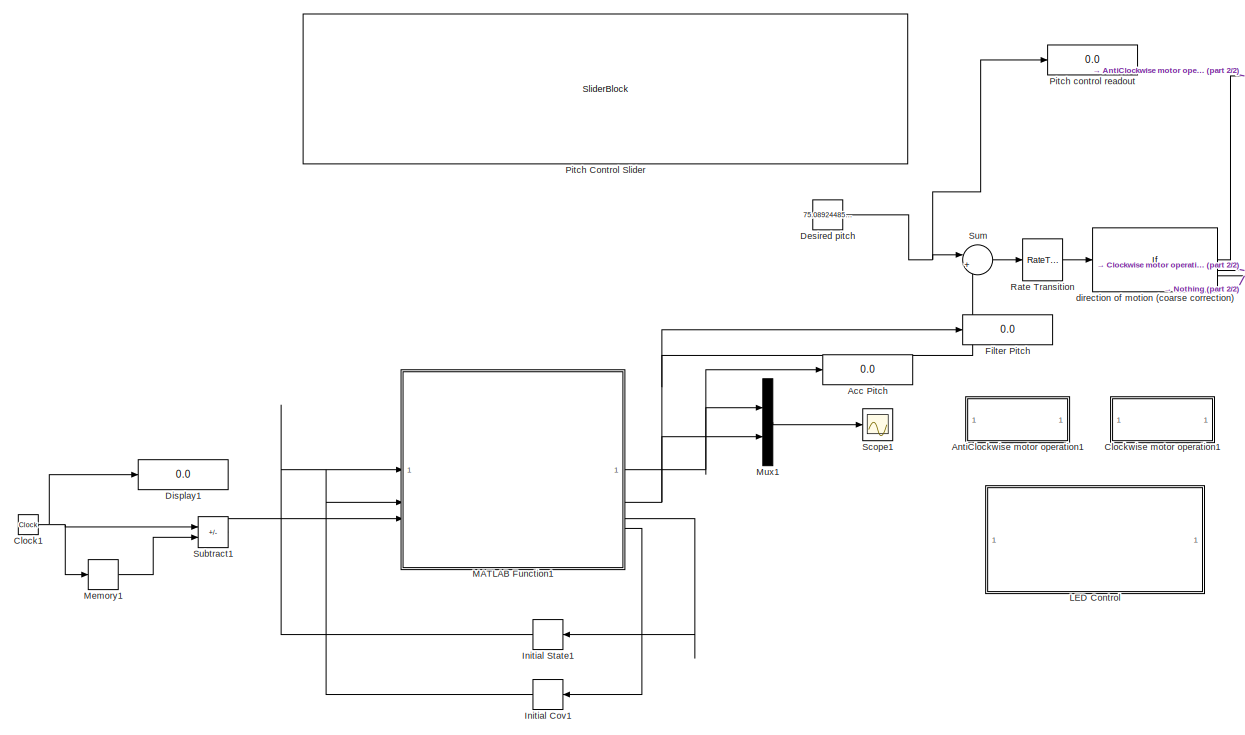
[diagram: root canvas - part 1/2, left side, full height]
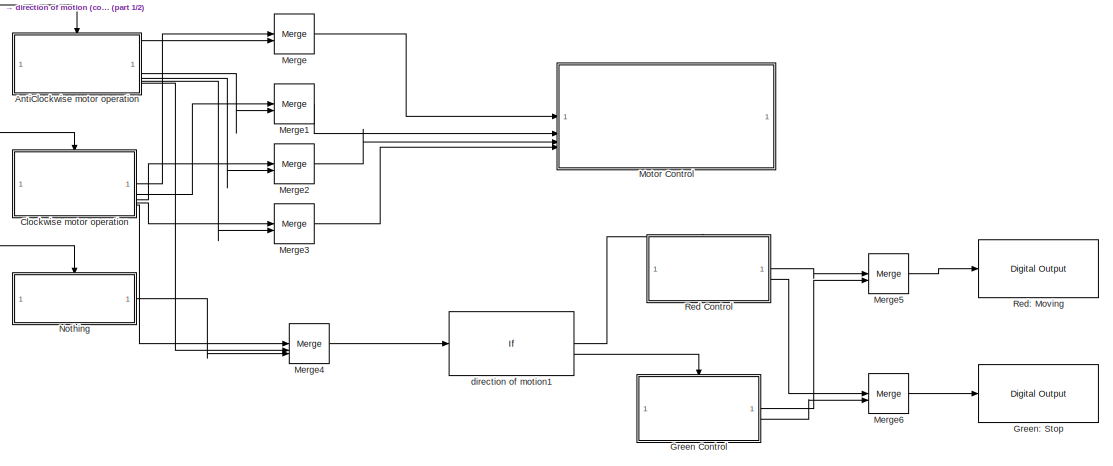
[diagram: root canvas - part 2/2, middle right region]
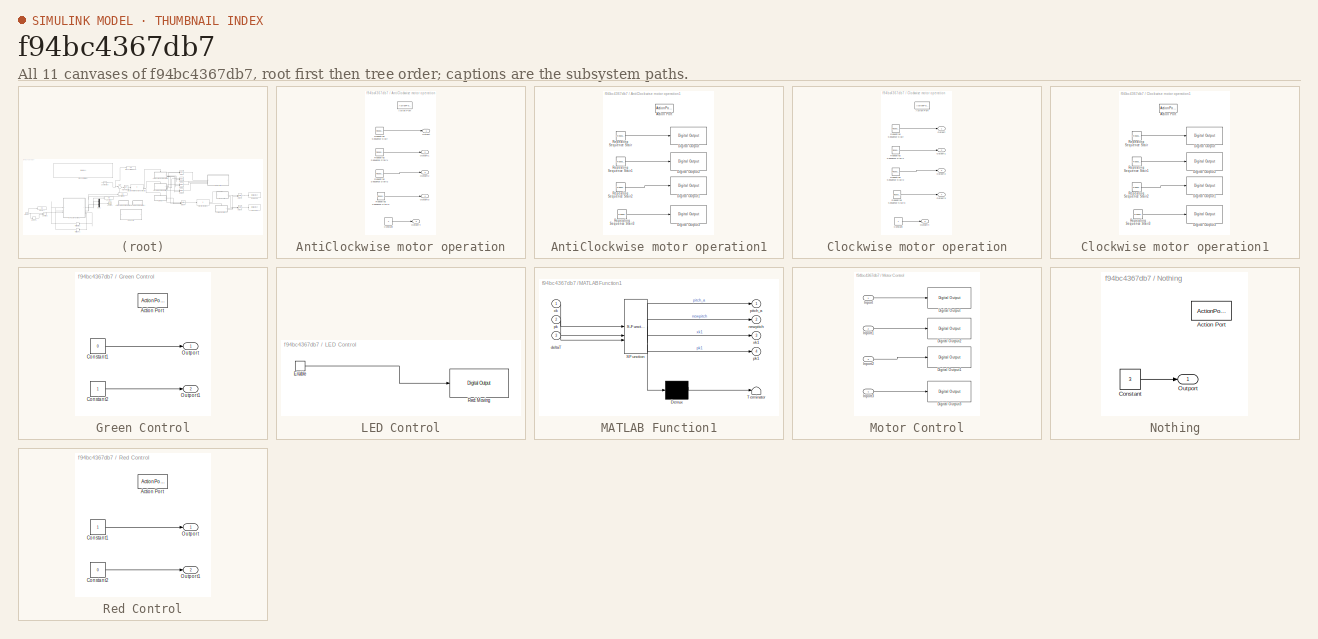
[diagram: thumbnail index - all 11 canvases of the model, root first then tree order]
MODEL slx_f94bc4367db7
KIND model
CONFIG AbsTol = auto
CONFIG EnableMultiTasking = on
CONFIG FixedStep = auto
CONFIG MaxStep = auto
CONFIG MinStep = auto
CONFIG RelTol = 1e-3
CONFIG SampleTimeConstraint = Unconstrained
CONFIG SolverName = FixedStepAuto
CONFIG StartTime = 0.0
CONFIG StopTime = inf
BLOCK [Display] Acc Pitch
  Decimation = 1
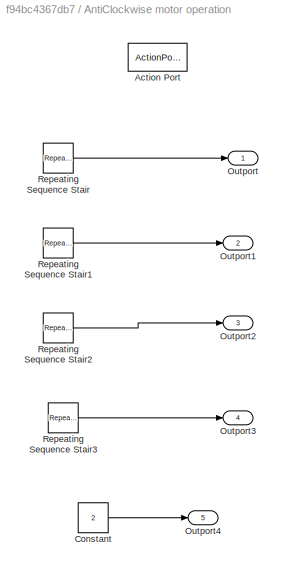
BLOCK [SubSystem] AntiClockwise motor operation
BLOCK [ActionPort] AntiClockwise motor operation/Action Port
  ActionPortLabel = if(u1 > 1)
BLOCK [Constant] AntiClockwise motor operation/Constant
  Value = 2
BLOCK [Outport] AntiClockwise motor operation/Outport
BLOCK [Outport] AntiClockwise motor operation/Outport1
  Port = 2
BLOCK [Outport] AntiClockwise motor operation/Outport2
  Port = 3
BLOCK [Outport] AntiClockwise motor operation/Outport3
  Port = 4
BLOCK [Outport] AntiClockwise motor operation/Outport4
  Port = 5
BLOCK [Reference] AntiClockwise motor operation/Repeating Sequence Stair  REF=simulink/Sources/Repeating
Sequence
Stair
  SourceBlock = simulink/Sources/Repeating\nSequence\nStair
  SourceType = Repeating Sequence Stair
BLOCK [Reference] AntiClockwise motor operation/Repeating Sequence Stair1  REF=simulink/Sources/Repeating
Sequence
Stair
  SourceBlock = simulink/Sources/Repeating\nSequence\nStair
  SourceType = Repeating Sequence Stair
BLOCK [Reference] AntiClockwise motor operation/Repeating Sequence Stair2  REF=simulink/Sources/Repeating
Sequence
Stair
  SourceBlock = simulink/Sources/Repeating\nSequence\nStair
  SourceType = Repeating Sequence Stair
BLOCK [Reference] AntiClockwise motor operation/Repeating Sequence Stair3  REF=simulink/Sources/Repeating
Sequence
Stair
  SourceBlock = simulink/Sources/Repeating\nSequence\nStair
  SourceType = Repeating Sequence Stair
BLOCK [SubSystem] AntiClockwise motor operation1
  Commented = on
BLOCK [ActionPort] AntiClockwise motor operation1/Action Port
BLOCK [Reference] AntiClockwise motor operation1/Digital Output  REF=arduinolib/Digital Output
  SourceBlock = arduinolib/Digital Output
  SourceType = Arduino Digital Output
BLOCK [Reference] AntiClockwise motor operation1/Digital Output1  REF=arduinolib/Digital Output
  SourceBlock = arduinolib/Digital Output
  SourceType = Arduino Digital Output
BLOCK [Reference] AntiClockwise motor operation1/Digital Output2  REF=arduinolib/Digital Output
  SourceBlock = arduinolib/Digital Output
  SourceType = Arduino Digital Output
BLOCK [Reference] AntiClockwise motor operation1/Digital Output3  REF=arduinolib/Digital Output
  SourceBlock = arduinolib/Digital Output
  SourceType = Arduino Digital Output
BLOCK [Reference] AntiClockwise motor operation1/Repeating Sequence Stair  REF=simulink/Sources/Repeating
Sequence
Stair
  SourceBlock = simulink/Sources/Repeating\nSequence\nStair
  SourceType = Repeating Sequence Stair
BLOCK [Reference] AntiClockwise motor operation1/Repeating Sequence Stair1  REF=simulink/Sources/Repeating
Sequence
Stair
  SourceBlock = simulink/Sources/Repeating\nSequence\nStair
  SourceType = Repeating Sequence Stair
BLOCK [Reference] AntiClockwise motor operation1/Repeating Sequence Stair2  REF=simulink/Sources/Repeating
Sequence
Stair
  SourceBlock = simulink/Sources/Repeating\nSequence\nStair
  SourceType = Repeating Sequence Stair
BLOCK [Reference] AntiClockwise motor operation1/Repeating Sequence Stair3  REF=simulink/Sources/Repeating
Sequence
Stair
  SourceBlock = simulink/Sources/Repeating\nSequence\nStair
  SourceType = Repeating Sequence Stair
BLOCK [Clock] Clock1
BLOCK [SubSystem] Clockwise motor operation
BLOCK [ActionPort] Clockwise motor operation/Action Port
  ActionPortLabel = elseif(u1 < -1)
BLOCK [Constant] Clockwise motor operation/Constant
BLOCK [Outport] Clockwise motor operation/Outport
BLOCK [Outport] Clockwise motor operation/Outport1
  Port = 2
BLOCK [Outport] Clockwise motor operation/Outport2
  Port = 3
BLOCK [Outport] Clockwise motor operation/Outport3
  Port = 4
BLOCK [Outport] Clockwise motor operation/Outport4
  Port = 5
BLOCK [Reference] Clockwise motor operation/Repeating Sequence Stair  REF=simulink/Sources/Repeating
Sequence
Stair
  SourceBlock = simulink/Sources/Repeating\nSequence\nStair
  SourceType = Repeating Sequence Stair
BLOCK [Reference] Clockwise motor operation/Repeating Sequence Stair1  REF=simulink/Sources/Repeating
Sequence
Stair
  SourceBlock = simulink/Sources/Repeating\nSequence\nStair
  SourceType = Repeating Sequence Stair
BLOCK [Reference] Clockwise motor operation/Repeating Sequence Stair2  REF=simulink/Sources/Repeating
Sequence
Stair
  SourceBlock = simulink/Sources/Repeating\nSequence\nStair
  SourceType = Repeating Sequence Stair
BLOCK [Reference] Clockwise motor operation/Repeating Sequence Stair3  REF=simulink/Sources/Repeating
Sequence
Stair
  SourceBlock = simulink/Sources/Repeating\nSequence\nStair
  SourceType = Repeating Sequence Stair
BLOCK [SubSystem] Clockwise motor operation1
  Commented = on
BLOCK [ActionPort] Clockwise motor operation1/Action Port
BLOCK [Reference] Clockwise motor operation1/Digital Output  REF=arduinolib/Digital Output
  SourceBlock = arduinolib/Digital Output
  SourceType = Arduino Digital Output
BLOCK [Reference] Clockwise motor operation1/Digital Output1  REF=arduinolib/Digital Output
  SourceBlock = arduinolib/Digital Output
  SourceType = Arduino Digital Output
BLOCK [Reference] Clockwise motor operation1/Digital Output2  REF=arduinolib/Digital Output
  SourceBlock = arduinolib/Digital Output
  SourceType = Arduino Digital Output
BLOCK [Reference] Clockwise motor operation1/Digital Output3  REF=arduinolib/Digital Output
  SourceBlock = arduinolib/Digital Output
  SourceType = Arduino Digital Output
BLOCK [Reference] Clockwise motor operation1/Repeating Sequence Stair  REF=simulink/Sources/Repeating
Sequence
Stair
  SourceBlock = simulink/Sources/Repeating\nSequence\nStair
  SourceType = Repeating Sequence Stair
BLOCK [Reference] Clockwise motor operation1/Repeating Sequence Stair1  REF=simulink/Sources/Repeating
Sequence
Stair
  SourceBlock = simulink/Sources/Repeating\nSequence\nStair
  SourceType = Repeating Sequence Stair
BLOCK [Reference] Clockwise motor operation1/Repeating Sequence Stair2  REF=simulink/Sources/Repeating
Sequence
Stair
  SourceBlock = simulink/Sources/Repeating\nSequence\nStair
  SourceType = Repeating Sequence Stair
BLOCK [Reference] Clockwise motor operation1/Repeating Sequence Stair3  REF=simulink/Sources/Repeating
Sequence
Stair
  SourceBlock = simulink/Sources/Repeating\nSequence\nStair
  SourceType = Repeating Sequence Stair
BLOCK [Constant] Desired pitch
  Value = 75.0892448512586
BLOCK [Display] Display1
  Decimation = 1
BLOCK [Display] Filter Pitch
  Decimation = 1
BLOCK [SubSystem] Green Control
BLOCK [ActionPort] Green Control/Action Port
  ActionPortLabel = elseif(u1 > 2)
BLOCK [Constant] Green Control/Constant1
  Value = 0
BLOCK [Constant] Green Control/Constant2
BLOCK [Outport] Green Control/Outport
BLOCK [Outport] Green Control/Outport1
  Port = 2
BLOCK [Reference] Green: Stop  REF=arduinolib/Digital Output
  SourceBlock = arduinolib/Digital Output
  SourceType = Arduino Digital Output
BLOCK [Memory] Initial Cov1
  InitialCondition = [0.5 0; 0 0.01]
  NameLocation = top
BLOCK [Memory] Initial State1
  InitialCondition = [0;0]
  NameLocation = top
BLOCK [SubSystem] LED Control
  Commented = on
BLOCK [EnablePort] LED Control/Enable
  ShowOutputPort = on
  StatesWhenEnabling = reset
BLOCK [Reference] LED Control/Red: Moving  REF=arduinolib/Digital Output
  SourceBlock = arduinolib/Digital Output
  SourceType = Arduino Digital Output
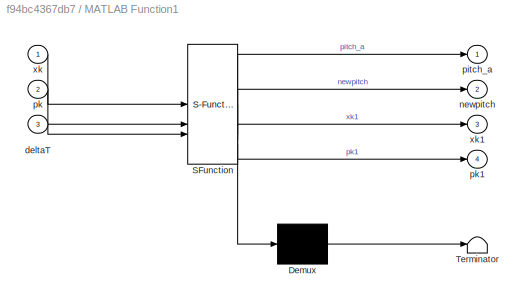
BLOCK [SubSystem] MATLAB Function1
  ErrorFcn = Stateflow.Translate.translate
  LibrarySourceBlock = simulink/User-Defined\nFunctions/MATLAB Function
  PermitHierarchicalResolution = ExplicitOnly
  SFBlockType = MATLAB Function
  TreatAsAtomicUnit = on
BLOCK [Demux] MATLAB Function1/ Demux 
  Outputs = 1
BLOCK [S-Function] MATLAB Function1/ SFunction 
  EnableBusSupport = on
  FunctionName = sf_sfun
  PortCounts = [3 5]
  SFcnIsStateOwnerBlock = off
  SFunctionDeploymentMode = off
  Tag = Stateflow S-Function 2
BLOCK [Terminator] MATLAB Function1/ Terminator 
BLOCK [Inport] MATLAB Function1/deltaT
  Port = 3
BLOCK [Outport] MATLAB Function1/newpitch
  Port = 2
BLOCK [Outport] MATLAB Function1/pitch_a
BLOCK [Inport] MATLAB Function1/pk
  Port = 2
BLOCK [Outport] MATLAB Function1/pk1
  Port = 4
BLOCK [Inport] MATLAB Function1/xk
BLOCK [Outport] MATLAB Function1/xk1
  Port = 3
BLOCK [Memory] Memory1
BLOCK [Merge] Merge
BLOCK [Merge] Merge1
BLOCK [Merge] Merge2
BLOCK [Merge] Merge3
BLOCK [Merge] Merge4
  Inputs = 3
BLOCK [Merge] Merge5
BLOCK [Merge] Merge6
BLOCK [SubSystem] Motor Control
BLOCK [Reference] Motor Control/Digital Output  REF=arduinolib/Digital Output
  SourceBlock = arduinolib/Digital Output
  SourceType = Arduino Digital Output
BLOCK [Reference] Motor Control/Digital Output1  REF=arduinolib/Digital Output
  SourceBlock = arduinolib/Digital Output
  SourceType = Arduino Digital Output
BLOCK [Reference] Motor Control/Digital Output2  REF=arduinolib/Digital Output
  SourceBlock = arduinolib/Digital Output
  SourceType = Arduino Digital Output
BLOCK [Reference] Motor Control/Digital Output3  REF=arduinolib/Digital Output
  SourceBlock = arduinolib/Digital Output
  SourceType = Arduino Digital Output
BLOCK [Inport] Motor Control/Inport
BLOCK [Inport] Motor Control/Inport1
  Port = 2
BLOCK [Inport] Motor Control/Inport2
  Port = 3
BLOCK [Inport] Motor Control/Inport3
  Port = 4
BLOCK [Mux] Mux1
  DisplayOption = bar
  Inputs = 2
BLOCK [SubSystem] Nothing
BLOCK [ActionPort] Nothing/Action Port
  ActionPortLabel = else
BLOCK [Constant] Nothing/Constant
  Value = 3
BLOCK [Outport] Nothing/Outport
BLOCK [SliderBlock] Pitch Control Slider
  ScaleMax = 90
  ScaleMin = -90
  TickInterval = 10
BLOCK [Display] Pitch control readout
  Decimation = 1
BLOCK [RateTransition] Rate Transition
BLOCK [SubSystem] Red Control
BLOCK [ActionPort] Red Control/Action Port
  ActionPortLabel = if(u1 <= 2)
BLOCK [Constant] Red Control/Constant1
BLOCK [Constant] Red Control/Constant2
  Value = 0
BLOCK [Outport] Red Control/Outport
BLOCK [Outport] Red Control/Outport1
  Port = 2
BLOCK [Reference] Red: Moving  REF=arduinolib/Digital Output
  SourceBlock = arduinolib/Digital Output
  SourceType = Arduino Digital Output
BLOCK [Scope] Scope1
  Floating = off
  NumInputPorts = 1
  ScopeSpecificationString = Simulink.scopes.TimeScopeBlockCfg('CurrentConfiguration', extmgr.ConfigurationSet(extmgr.Configuration('Core','General UI',true),extmgr.Configuration('Core','Source UI',true),extmgr.Configuration('Sources','WiredSimulink',true,'DataLoggingVariableName','ScopeData1'),extmgr.Configuration('Visuals','Time Domain',true,'SerializedDisplays',{struct('MinYLimReal','-15.36043','MaxYLimReal','-14.17016','Y...<+1419ch>
BLOCK [Sum] Subtract1
  IconShape = rectangular
  Inputs = +-
BLOCK [Sum] Sum
  Inputs = |+-
BLOCK [If] direction of motion (coarse correction)
  ElseIfExpressions = u1 < -1
  IfExpression = u1 > 1
BLOCK [If] direction of motion1
  ElseIfExpressions = u1 > 2
  IfExpression = u1 <= 2
  ShowElse = off
LINE AntiClockwise motor operation/Constant:1 -> AntiClockwise motor operation/Outport4:1
LINE AntiClockwise motor operation/Repeating Sequence Stair1:1 -> AntiClockwise motor operation/Outport1:1
LINE AntiClockwise motor operation/Repeating Sequence Stair2:1 -> AntiClockwise motor operation/Outport2:1
LINE AntiClockwise motor operation/Repeating Sequence Stair3:1 -> AntiClockwise motor operation/Outport3:1
LINE AntiClockwise motor operation/Repeating Sequence Stair:1 -> AntiClockwise motor operation/Outport:1
LINE AntiClockwise motor operation1/Repeating Sequence Stair1:1 -> AntiClockwise motor operation1/Digital Output2:1
LINE AntiClockwise motor operation1/Repeating Sequence Stair2:1 -> AntiClockwise motor operation1/Digital Output1:1
LINE AntiClockwise motor operation1/Repeating Sequence Stair3:1 -> AntiClockwise motor operation1/Digital Output3:1
LINE AntiClockwise motor operation1/Repeating Sequence Stair:1 -> AntiClockwise motor operation1/Digital Output:1
LINE AntiClockwise motor operation:1 -> Merge:2
LINE AntiClockwise motor operation:2 -> Merge1:2
LINE AntiClockwise motor operation:3 -> Merge2:2
LINE AntiClockwise motor operation:4 -> Merge3:2
LINE AntiClockwise motor operation:5 -> Merge4:2
NET Clock1:1 -> Display1:1, Memory1:1, Subtract1:1
LINE Clockwise motor operation/Constant:1 -> Clockwise motor operation/Outport4:1
LINE Clockwise motor operation/Repeating Sequence Stair1:1 -> Clockwise motor operation/Outport1:1
LINE Clockwise motor operation/Repeating Sequence Stair2:1 -> Clockwise motor operation/Outport2:1
LINE Clockwise motor operation/Repeating Sequence Stair3:1 -> Clockwise motor operation/Outport3:1
LINE Clockwise motor operation/Repeating Sequence Stair:1 -> Clockwise motor operation/Outport:1
LINE Clockwise motor operation1/Repeating Sequence Stair1:1 -> Clockwise motor operation1/Digital Output2:1
LINE Clockwise motor operation1/Repeating Sequence Stair2:1 -> Clockwise motor operation1/Digital Output1:1
LINE Clockwise motor operation1/Repeating Sequence Stair3:1 -> Clockwise motor operation1/Digital Output3:1
LINE Clockwise motor operation1/Repeating Sequence Stair:1 -> Clockwise motor operation1/Digital Output:1
LINE Clockwise motor operation:1 -> Merge:1
LINE Clockwise motor operation:2 -> Merge1:1
LINE Clockwise motor operation:3 -> Merge2:1
LINE Clockwise motor operation:4 -> Merge3:1
LINE Clockwise motor operation:5 -> Merge4:1
NET Desired pitch:1 -> Pitch control readout:1, Sum:1
LINE Green Control/Constant1:1 -> Green Control/Outport:1
LINE Green Control/Constant2:1 -> Green Control/Outport1:1
LINE Green Control:1 -> Merge5:2
LINE Green Control:2 -> Merge6:2
LINE Initial Cov1:1 -> MATLAB Function1:2
LINE Initial State1:1 -> MATLAB Function1:1
LINE LED Control/Enable:1 -> LED Control/Red: Moving:1
NET MATLAB Function1:1 -> Acc Pitch:1, Mux1:1
NET MATLAB Function1:2 -> Filter Pitch:1, Mux1:2, Sum:2
LINE MATLAB Function1:3 -> Initial State1:1
LINE MATLAB Function1:4 -> Initial Cov1:1
LINE Memory1:1 -> Subtract1:2
LINE Merge1:1 -> Motor Control:2
LINE Merge2:1 -> Motor Control:3
LINE Merge3:1 -> Motor Control:4
LINE Merge4:1 -> direction of motion1:1
LINE Merge5:1 -> Red: Moving:1
LINE Merge6:1 -> Green: Stop:1
LINE Merge:1 -> Motor Control:1
LINE Motor Control/Inport1:1 -> Motor Control/Digital Output2:1
LINE Motor Control/Inport2:1 -> Motor Control/Digital Output1:1
LINE Motor Control/Inport3:1 -> Motor Control/Digital Output3:1
LINE Motor Control/Inport:1 -> Motor Control/Digital Output:1
LINE Mux1:1 -> Scope1:1
LINE Nothing/Constant:1 -> Nothing/Outport:1
LINE Nothing:1 -> Merge4:3
LINE Rate Transition:1 -> direction of motion (coarse correction):1
LINE Red Control/Constant1:1 -> Red Control/Outport:1
LINE Red Control/Constant2:1 -> Red Control/Outport1:1
LINE Red Control:1 -> Merge5:1
LINE Red Control:2 -> Merge6:1
LINE Subtract1:1 -> MATLAB Function1:3
LINE Sum:1 -> Rate Transition:1
LINE direction of motion (coarse correction):1 -> AntiClockwise motor operation:ifaction
LINE direction of motion (coarse correction):2 -> Clockwise motor operation:ifaction
LINE direction of motion (coarse correction):3 -> Nothing:ifaction
LINE direction of motion1:1 -> Red Control:ifaction
LINE direction of motion1:2 -> Green Control:ifaction
note: NET lines group one-source signal fan-out (src -> all destinations, sorted); 1:1 wires keep LINE
CHART MATLAB Function1 states=1 transitions=1
  STATE_LABEL 'eML_blk_kernel()'
  STATE_LABEL 'SCRIPT:\nfunction [pitch_a,newpitch,xk1,pk1] = calculate_angle_pitch(xk,pk,deltaT)\n% Calculate ypr using acclerometer and gyroscope separately yaw_g, pitch_g, roll_g,\n\npersistent arduinoObj imuObj \n\nif isempty(arduinoObj)\n    arduinoObj = arduino();\nend\nif isempty(imuObj)\n    imuObj = mpu6050(arduinoObj);\nend\n\n% Reading data from Arduino \n\n    [accel,gyro] = read(imuObj);\n\n    ax=accel(1);\n    ay=a...<+878ch>'
CHART  states=0 transitions=0
